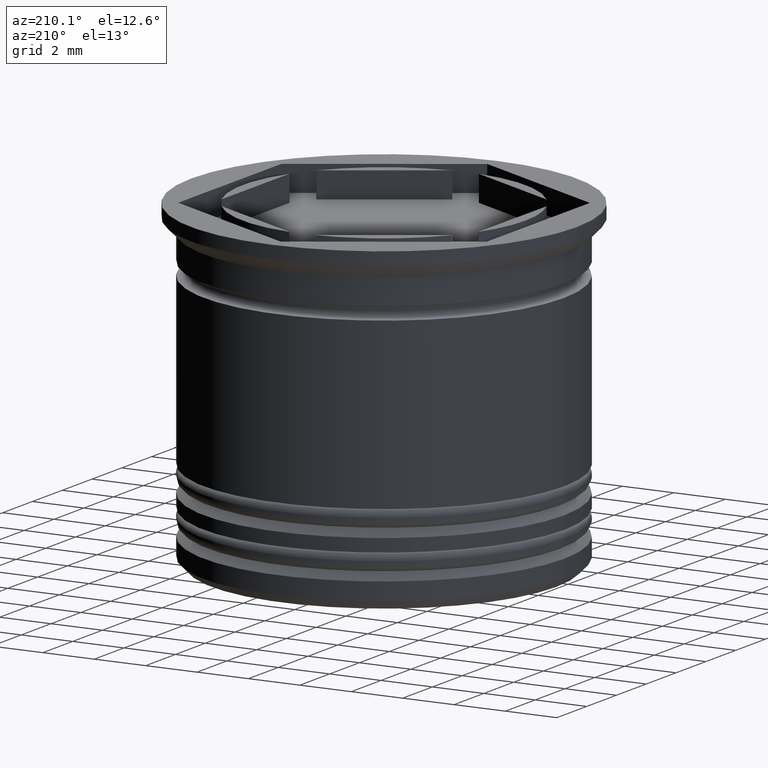
[diagram: clean part render]
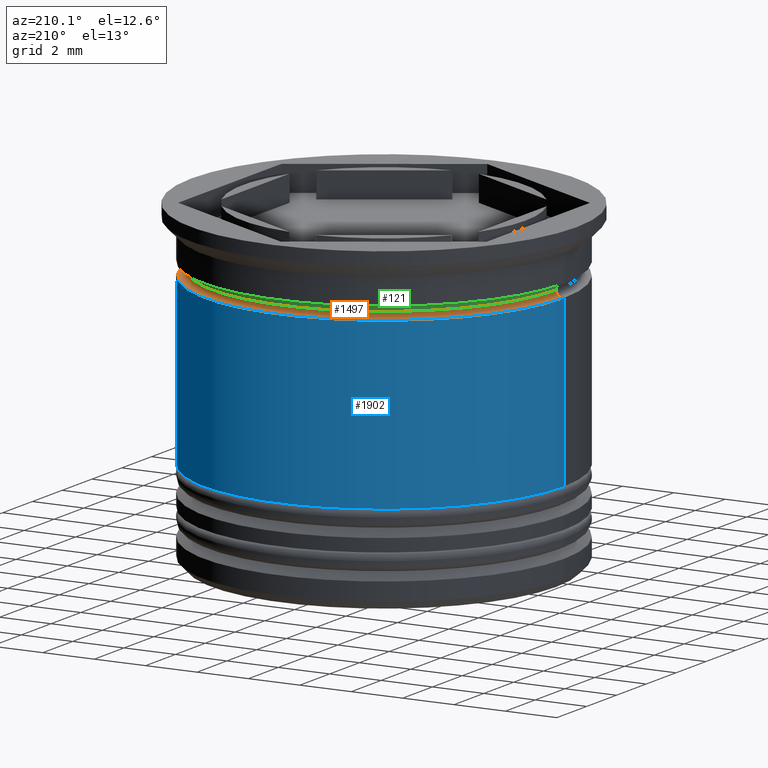
[diagram: same view with three faces highlighted in distinct colors, each labeled with its STEP entity id]
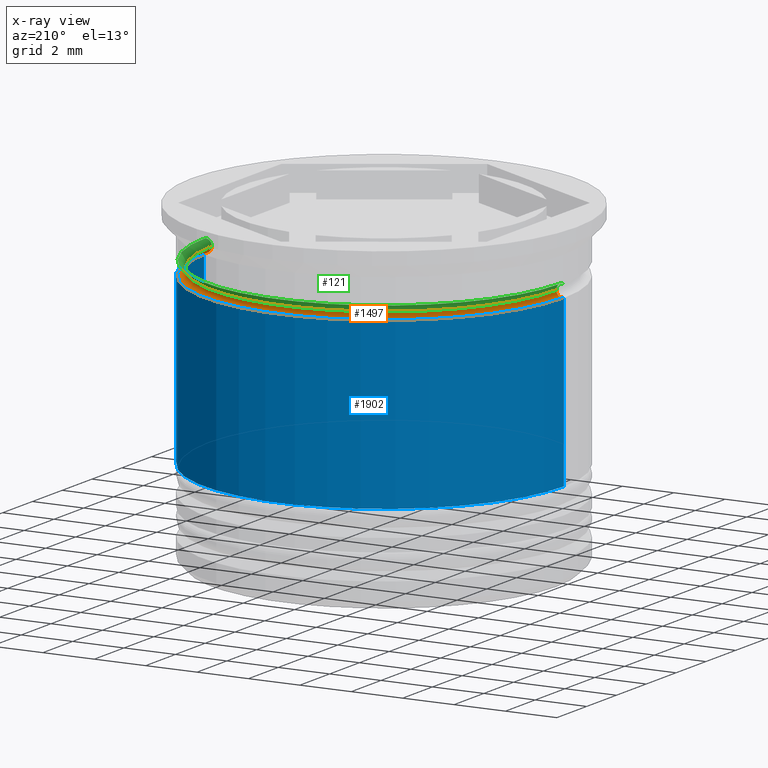
[diagram: x-ray of the same camera — body ghosted, the three highlighted faces saturated]
A machine part, auxiliary view with three faces highlighted in distinct colors.
The next image is the same camera in x-ray (body ghosted, the three faces saturated) — at least one of them is partly hidden behind the body in this view.
Their STEP definitions:

[orange] entity #1497 — the highlighted toroidal blend (fillet) surface has major radius 6.95 mm and minor (blend) radius 0.25 mm.
#76 = CIRCLE ( 'NONE', #933, 6.700000000000000178 ) ;
#137 = VERTEX_POINT ( 'NONE', #1307 ) ;
#208 = EDGE_CURVE ( 'NONE', #324, #137, #76, .T. ) ;
#227 = ORIENTED_EDGE ( 'NONE', *, *, #1764, .T. ) ;
#232 = FACE_OUTER_BOUND ( 'NONE', #745, .T. ) ;
#324 = VERTEX_POINT ( 'NONE', #1252 ) ;
#409 = VERTEX_POINT ( 'NONE', #664 ) ;
#486 = ORIENTED_EDGE ( 'NONE', *, *, #208, .F. ) ;
#505 = CARTESIAN_POINT ( 'NONE',  ( 0.000000000000000000, 0.000000000000000000, -2.500000000000000444 ) ) ;
#508 = EDGE_CURVE ( 'NONE', #137, #409, #510, .T. ) ;
#510 = CIRCLE ( 'NONE', #738, 0.2500000000000002220 ) ;
#527 = CARTESIAN_POINT ( 'NONE',  ( 6.950000000000000178, 0.000000000000000000, -2.250000000000000444 ) ) ;
#574 = CARTESIAN_POINT ( 'NONE',  ( -6.950000000000000178, 8.511295254074105418E-16, -2.250000000000000444 ) ) ;
#648 = ORIENTED_EDGE ( 'NONE', *, *, #1790, .F. ) ;
#664 = CARTESIAN_POINT ( 'NONE',  ( -6.950000000000000178, 8.511295254074105418E-16, -2.500000000000000444 ) ) ;
#680 = DIRECTION ( 'NONE',  ( -0.000000000000000000, -0.000000000000000000, 1.000000000000000000 ) ) ;
#738 = AXIS2_PLACEMENT_3D ( 'NONE', #574, #1797, #1944 ) ;
#745 = EDGE_LOOP ( 'NONE', ( #486, #227, #648, #1773 ) ) ;
#844 = DIRECTION ( 'NONE',  ( -1.000000000000000000, 0.000000000000000000, 0.000000000000000000 ) ) ;
#899 = AXIS2_PLACEMENT_3D ( 'NONE', #1433, #680, #1152 ) ;
#909 = CARTESIAN_POINT ( 'NONE',  ( 6.950000000000000178, 0.000000000000000000, -2.500000000000000444 ) ) ;
#933 = AXIS2_PLACEMENT_3D ( 'NONE', #1067, #1504, #1818 ) ;
#965 = DIRECTION ( 'NONE',  ( 0.000000000000000000, 0.000000000000000000, -1.000000000000000000 ) ) ;
#1067 = CARTESIAN_POINT ( 'NONE',  ( 0.000000000000000000, 0.000000000000000000, -2.250000000000000444 ) ) ;
#1068 = AXIS2_PLACEMENT_3D ( 'NONE', #527, #1413, #965 ) ;
#1102 = CIRCLE ( 'NONE', #1473, 6.950000000000000178 ) ;
#1152 = DIRECTION ( 'NONE',  ( 1.000000000000000000, 0.000000000000000000, 0.000000000000000000 ) ) ;
#1252 = CARTESIAN_POINT ( 'NONE',  ( 6.700000000000000178, 0.000000000000000000, -2.250000000000000444 ) ) ;
#1307 = CARTESIAN_POINT ( 'NONE',  ( -6.700000000000000178, 8.205133554287266562E-16, -2.250000000000000444 ) ) ;
#1413 = DIRECTION ( 'NONE',  ( 0.000000000000000000, -1.000000000000000000, 0.000000000000000000 ) ) ;
#1433 = CARTESIAN_POINT ( 'NONE',  ( 0.000000000000000000, 0.000000000000000000, -2.250000000000000444 ) ) ;
#1469 = TOROIDAL_SURFACE ( 'NONE', #899, 6.950000000000000178, 0.2500000000000002220 ) ;
#1473 = AXIS2_PLACEMENT_3D ( 'NONE', #505, #1607, #844 ) ;
#1497 = ADVANCED_FACE ( 'NONE', ( #232 ), #1469, .F. ) ;
#1504 = DIRECTION ( 'NONE',  ( -0.000000000000000000, -0.000000000000000000, 1.000000000000000000 ) ) ;
#1607 = DIRECTION ( 'NONE',  ( 0.000000000000000000, 0.000000000000000000, -1.000000000000000000 ) ) ;
#1764 = EDGE_CURVE ( 'NONE', #324, #1887, #1951, .T. ) ;
#1773 = ORIENTED_EDGE ( 'NONE', *, *, #508, .F. ) ;
#1790 = EDGE_CURVE ( 'NONE', #409, #1887, #1102, .T. ) ;
#1797 = DIRECTION ( 'NONE',  ( 1.224646799147353207E-16, 1.000000000000000000, 0.000000000000000000 ) ) ;
#1818 = DIRECTION ( 'NONE',  ( 1.000000000000000000, 0.000000000000000000, 0.000000000000000000 ) ) ;
#1887 = VERTEX_POINT ( 'NONE', #909 ) ;
#1944 = DIRECTION ( 'NONE',  ( -1.000000000000000000, 1.224646799147353454E-16, 0.000000000000000000 ) ) ;
#1951 = CIRCLE ( 'NONE', #1068, 0.2500000000000002220 ) ;

[blue] entity #1902 — the highlighted cylindrical surface (partial cylindrical patch) has radius 7 mm, axis along (-0, -0, 1).
#4 = DIRECTION ( 'NONE',  ( -0.000000000000000000, -0.000000000000000000, 1.000000000000000000 ) ) ;
#5 = CYLINDRICAL_SURFACE ( 'NONE', #737, 7.000000000000000000 ) ;
#42 = VECTOR ( 'NONE', #1940, 1000.000000000000000 ) ;
#91 = LINE ( 'NONE', #720, #42 ) ;
#139 = DIRECTION ( 'NONE',  ( -0.000000000000000000, -0.000000000000000000, 1.000000000000000000 ) ) ;
#199 = CARTESIAN_POINT ( 'NONE',  ( -7.000000000000001776, 8.572527594031474176E-16, -9.000000000000001776 ) ) ;
#203 = ORIENTED_EDGE ( 'NONE', *, *, #895, .F. ) ;
#211 = VERTEX_POINT ( 'NONE', #1917 ) ;
#290 = AXIS2_PLACEMENT_3D ( 'NONE', #1832, #139, #1260 ) ;
#338 = CARTESIAN_POINT ( 'NONE',  ( 0.000000000000000000, 0.000000000000000000, -2.500000000000000000 ) ) ;
#349 = CIRCLE ( 'NONE', #869, 6.999999999999999112 ) ;
#361 = EDGE_CURVE ( 'NONE', #1462, #1172, #1407, .T. ) ;
#375 = EDGE_LOOP ( 'NONE', ( #1272, #1565, #1004, #203 ) ) ;
#720 = CARTESIAN_POINT ( 'NONE',  ( -7.000000000000000000, 8.572527594031473190E-16, 0.000000000000000000 ) ) ;
#737 = AXIS2_PLACEMENT_3D ( 'NONE', #1376, #917, #1972 ) ;
#750 = LINE ( 'NONE', #1055, #1822 ) ;
#790 = EDGE_CURVE ( 'NONE', #1372, #211, #349, .T. ) ;
#860 = DIRECTION ( 'NONE',  ( -0.000000000000000000, -0.000000000000000000, 1.000000000000000000 ) ) ;
#869 = AXIS2_PLACEMENT_3D ( 'NONE', #338, #4, #1375 ) ;
#895 = EDGE_CURVE ( 'NONE', #1462, #1372, #750, .T. ) ;
#917 = DIRECTION ( 'NONE',  ( -0.000000000000000000, -0.000000000000000000, 1.000000000000000000 ) ) ;
#1004 = ORIENTED_EDGE ( 'NONE', *, *, #790, .F. ) ;
#1055 = CARTESIAN_POINT ( 'NONE',  ( 7.000000000000000000, 0.000000000000000000, 0.000000000000000000 ) ) ;
#1108 = CARTESIAN_POINT ( 'NONE',  ( 7.000000000000000888, 0.000000000000000000, -9.000000000000001776 ) ) ;
#1172 = VERTEX_POINT ( 'NONE', #199 ) ;
#1260 = DIRECTION ( 'NONE',  ( 1.000000000000000000, 0.000000000000000000, 0.000000000000000000 ) ) ;
#1266 = EDGE_CURVE ( 'NONE', #1172, #211, #91, .T. ) ;
#1272 = ORIENTED_EDGE ( 'NONE', *, *, #361, .T. ) ;
#1372 = VERTEX_POINT ( 'NONE', #1821 ) ;
#1375 = DIRECTION ( 'NONE',  ( 1.000000000000000000, 0.000000000000000000, 0.000000000000000000 ) ) ;
#1376 = CARTESIAN_POINT ( 'NONE',  ( 0.000000000000000000, 0.000000000000000000, 0.000000000000000000 ) ) ;
#1407 = CIRCLE ( 'NONE', #290, 7.000000000000000888 ) ;
#1462 = VERTEX_POINT ( 'NONE', #1108 ) ;
#1565 = ORIENTED_EDGE ( 'NONE', *, *, #1266, .T. ) ;
#1821 = CARTESIAN_POINT ( 'NONE',  ( 6.999999999999999112, 0.000000000000000000, -2.500000000000000000 ) ) ;
#1822 = VECTOR ( 'NONE', #860, 1000.000000000000000 ) ;
#1832 = CARTESIAN_POINT ( 'NONE',  ( 0.000000000000000000, 0.000000000000000000, -9.000000000000001776 ) ) ;
#1902 = ADVANCED_FACE ( 'NONE', ( #1990 ), #5, .T. ) ;
#1917 = CARTESIAN_POINT ( 'NONE',  ( -6.999999999999999112, 8.572527594031473190E-16, -2.500000000000000000 ) ) ;
#1940 = DIRECTION ( 'NONE',  ( -0.000000000000000000, -0.000000000000000000, 1.000000000000000000 ) ) ;
#1972 = DIRECTION ( 'NONE',  ( 1.000000000000000000, 0.000000000000000000, 0.000000000000000000 ) ) ;
#1990 = FACE_OUTER_BOUND ( 'NONE', #375, .T. ) ;

[green] entity #121 — the highlighted toroidal blend (fillet) surface has major radius 6.95 mm and minor (blend) radius 0.25 mm.
#54 = CARTESIAN_POINT ( 'NONE',  ( 6.950000000000000178, 0.000000000000000000, -2.000000000000000000 ) ) ;
#76 = CIRCLE ( 'NONE', #933, 6.700000000000000178 ) ;
#108 = CIRCLE ( 'NONE', #507, 0.2500000000000002220 ) ;
#121 = ADVANCED_FACE ( 'NONE', ( #431 ), #1229, .F. ) ;
#137 = VERTEX_POINT ( 'NONE', #1307 ) ;
#196 = EDGE_CURVE ( 'NONE', #427, #788, #1064, .T. ) ;
#208 = EDGE_CURVE ( 'NONE', #324, #137, #76, .T. ) ;
#214 = EDGE_CURVE ( 'NONE', #427, #324, #108, .T. ) ;
#324 = VERTEX_POINT ( 'NONE', #1252 ) ;
#337 = ORIENTED_EDGE ( 'NONE', *, *, #1227, .F. ) ;
#382 = DIRECTION ( 'NONE',  ( 1.000000000000000000, 0.000000000000000000, 0.000000000000000000 ) ) ;
#393 = CARTESIAN_POINT ( 'NONE',  ( -6.950000000000000178, 8.511295254074105418E-16, -2.250000000000000444 ) ) ;
#427 = VERTEX_POINT ( 'NONE', #54 ) ;
#431 = FACE_OUTER_BOUND ( 'NONE', #1713, .T. ) ;
#507 = AXIS2_PLACEMENT_3D ( 'NONE', #699, #550, #1526 ) ;
#550 = DIRECTION ( 'NONE',  ( 0.000000000000000000, -1.000000000000000000, 0.000000000000000000 ) ) ;
#564 = ORIENTED_EDGE ( 'NONE', *, *, #214, .T. ) ;
#569 = ORIENTED_EDGE ( 'NONE', *, *, #208, .T. ) ;
#626 = CARTESIAN_POINT ( 'NONE',  ( -6.950000000000000178, 8.511295254074105418E-16, -2.000000000000000000 ) ) ;
#699 = CARTESIAN_POINT ( 'NONE',  ( 6.950000000000000178, 0.000000000000000000, -2.250000000000000444 ) ) ;
#748 = CARTESIAN_POINT ( 'NONE',  ( 0.000000000000000000, 0.000000000000000000, -2.000000000000000000 ) ) ;
#788 = VERTEX_POINT ( 'NONE', #626 ) ;
#827 = AXIS2_PLACEMENT_3D ( 'NONE', #393, #1472, #1653 ) ;
#845 = DIRECTION ( 'NONE',  ( 1.000000000000000000, 0.000000000000000000, 0.000000000000000000 ) ) ;
#933 = AXIS2_PLACEMENT_3D ( 'NONE', #1067, #1504, #1818 ) ;
#1017 = DIRECTION ( 'NONE',  ( -0.000000000000000000, -0.000000000000000000, 1.000000000000000000 ) ) ;
#1052 = CARTESIAN_POINT ( 'NONE',  ( 0.000000000000000000, 0.000000000000000000, -2.250000000000000444 ) ) ;
#1064 = CIRCLE ( 'NONE', #1510, 6.950000000000000178 ) ;
#1066 = ORIENTED_EDGE ( 'NONE', *, *, #196, .F. ) ;
#1067 = CARTESIAN_POINT ( 'NONE',  ( 0.000000000000000000, 0.000000000000000000, -2.250000000000000444 ) ) ;
#1227 = EDGE_CURVE ( 'NONE', #788, #137, #1827, .T. ) ;
#1229 = TOROIDAL_SURFACE ( 'NONE', #1348, 6.950000000000000178, 0.2500000000000002220 ) ;
#1252 = CARTESIAN_POINT ( 'NONE',  ( 6.700000000000000178, 0.000000000000000000, -2.250000000000000444 ) ) ;
#1307 = CARTESIAN_POINT ( 'NONE',  ( -6.700000000000000178, 8.205133554287266562E-16, -2.250000000000000444 ) ) ;
#1348 = AXIS2_PLACEMENT_3D ( 'NONE', #1052, #1017, #845 ) ;
#1460 = DIRECTION ( 'NONE',  ( -0.000000000000000000, -0.000000000000000000, 1.000000000000000000 ) ) ;
#1472 = DIRECTION ( 'NONE',  ( 1.224646799147353207E-16, 1.000000000000000000, 0.000000000000000000 ) ) ;
#1504 = DIRECTION ( 'NONE',  ( -0.000000000000000000, -0.000000000000000000, 1.000000000000000000 ) ) ;
#1510 = AXIS2_PLACEMENT_3D ( 'NONE', #748, #1460, #382 ) ;
#1526 = DIRECTION ( 'NONE',  ( 0.000000000000000000, 0.000000000000000000, -1.000000000000000000 ) ) ;
#1653 = DIRECTION ( 'NONE',  ( -1.000000000000000000, 1.224646799147353454E-16, 0.000000000000000000 ) ) ;
#1713 = EDGE_LOOP ( 'NONE', ( #564, #569, #337, #1066 ) ) ;
#1818 = DIRECTION ( 'NONE',  ( 1.000000000000000000, 0.000000000000000000, 0.000000000000000000 ) ) ;
#1827 = CIRCLE ( 'NONE', #827, 0.2500000000000002220 ) ;